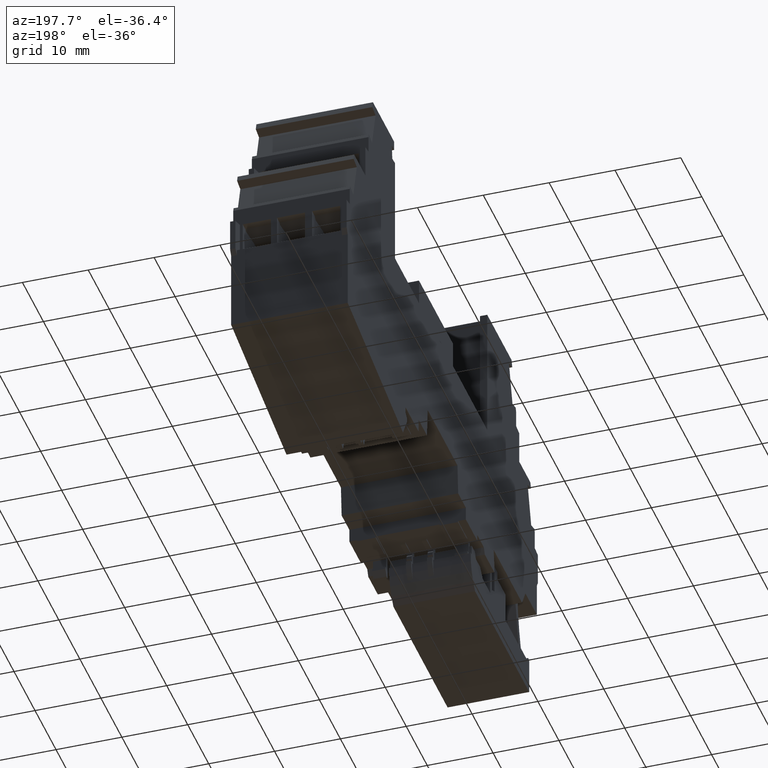
[diagram: clean part render]
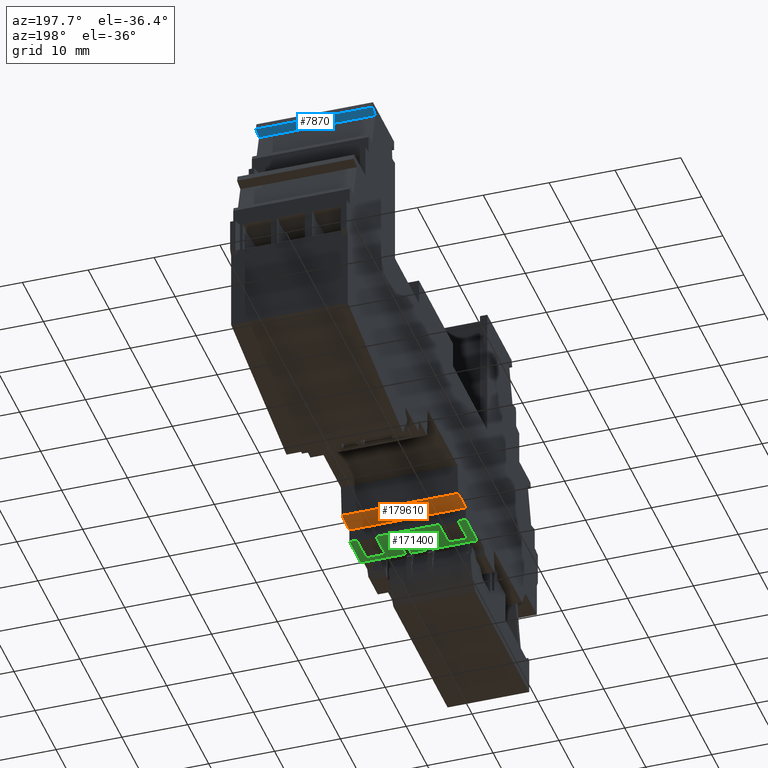
[diagram: same view with three faces highlighted in distinct colors, each labeled with its STEP entity id]
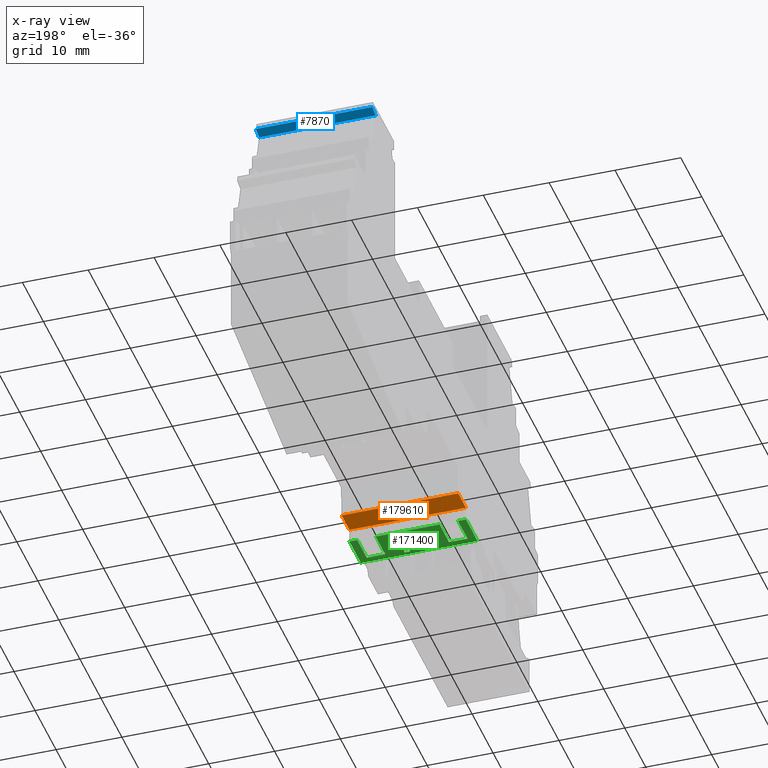
[diagram: x-ray of the same camera — body ghosted, the three highlighted faces saturated]
A machine part, auxiliary view with three faces highlighted in distinct colors.
The next image is the same camera in x-ray (body ghosted, the three faces saturated) — at least one of them is partly hidden behind the body in this view.
Their STEP definitions:

[orange] entity #179610 — the highlighted planar face has unit normal (0, 0, -1).
#3080=CARTESIAN_POINT('',(110.587251077606,30.0453465791783,
-0.938341445750716));
#3090=VERTEX_POINT('',#3080);
#3120=CARTESIAN_POINT('',(171.854165367466,30.0453465791783,
-0.93834144574264));
#3130=DIRECTION('',(1.,-3.00822995358002E-23,1.31820478495383E-13));
#3140=VECTOR('',#3130,1.);
#3150=LINE('',#3120,#3140);
#3160=CARTESIAN_POINT('',(106.903020241698,30.045346579171,
-0.938341445751202));
#3170=VERTEX_POINT('',#3160);
#3180=EDGE_CURVE('',#3170,#3090,#3150,.T.);
#11680=CARTESIAN_POINT('',(106.903020241696,30.0453465784002,
-18.6383414421948));
#11690=VERTEX_POINT('',#11680);
#11720=CARTESIAN_POINT('',(171.854165366688,30.0453465784002,
-18.6383414422033));
#11730=DIRECTION('',(1.,-4.1671480469559E-23,-1.31820482418933E-13));
#11740=VECTOR('',#11730,1.);
#11750=LINE('',#11720,#11740);
#11760=CARTESIAN_POINT('',(110.587251077604,30.0453465784002,
-18.6383414421953));
#11770=VERTEX_POINT('',#11760);
#11780=EDGE_CURVE('',#11690,#11770,#11750,.T.);
#178570=CARTESIAN_POINT('',(106.9030202417,30.045346579708,
11.2750000026827));
#178580=DIRECTION('',(-1.3182048241894E-13,-4.39608926050624E-11,-1.));
#178590=VECTOR('',#178580,1.);
#178600=LINE('',#178570,#178590);
#178610=EDGE_CURVE('',#3170,#11690,#178600,.T.);
#179450=CARTESIAN_POINT('',(110.587251077604,30.0453465784002,
-18.6383414421953));
#179460=DIRECTION('',(-3.58774154957188E-23,-1.,4.39608926050624E-11));
#179470=DIRECTION('',(1.,-4.16723615664853E-23,-1.3182048241894E-13));
#179480=AXIS2_PLACEMENT_3D('',#179450,#179460,#179470);
#179490=PLANE('',#179480);
#179500=ORIENTED_EDGE('',*,*,#178610,.T.);
#179510=ORIENTED_EDGE('',*,*,#3180,.F.);
#179520=CARTESIAN_POINT('',(110.587251078377,30.0453465797152,
11.2750000025207));
#179530=DIRECTION('',(-1.31820478495376E-13,4.39608926050624E-11,1.));
#179540=VECTOR('',#179530,1.);
#179550=LINE('',#179520,#179540);
#179560=EDGE_CURVE('',#11770,#3090,#179550,.T.);
#179570=ORIENTED_EDGE('',*,*,#179560,.T.);
#179580=ORIENTED_EDGE('',*,*,#11780,.T.);
#179590=EDGE_LOOP('',(#179580,#179570,#179510,#179500));
#179600=FACE_OUTER_BOUND('',#179590,.T.);
#179610=ADVANCED_FACE('',(#179600),#179490,.T.);

[blue] entity #7870 — the highlighted planar face has unit normal (0, -0.2639, 0.9646).
#760=CARTESIAN_POINT('',(151.446544502388,70.801929680881,
-0.938341447537027));
#770=VERTEX_POINT('',#760);
#800=CARTESIAN_POINT('',(85.4518755928881,52.747831258784,
-0.938341446734807));
#810=DIRECTION('',(0.964557418457813,0.26387304996532,
-1.19815583951361E-11));
#820=VECTOR('',#810,1.);
#830=LINE('',#800,#820);
#840=CARTESIAN_POINT('',(149.903252632856,70.3797328009367,
-0.938341447518669));
#850=VERTEX_POINT('',#840);
#860=EDGE_CURVE('',#850,#770,#830,.T.);
#7570=CARTESIAN_POINT('',(150.38553134208,70.5116693251411,
-18.6383414445199));
#7580=DIRECTION('',(-0.26387304996532,0.964557418457813,
-4.23332373392702E-11));
#7590=DIRECTION('',(-0.964557418457813,-0.26387304996532,
1.18543916574472E-11));
#7600=AXIS2_PLACEMENT_3D('',#7570,#7580,#7590);
#7610=PLANE('',#7600);
#7620=CARTESIAN_POINT('',(85.4518755936615,52.7478312582187,
-18.63834144319));
#7630=DIRECTION('',(-0.964557418457813,-0.26387304996532,
1.17272618113457E-11));
#7640=VECTOR('',#7630,1.);
#7650=LINE('',#7620,#7640);
#7660=CARTESIAN_POINT('',(151.446544503109,70.8019296803014,
-18.6383414439924));
#7670=VERTEX_POINT('',#7660);
#7680=CARTESIAN_POINT('',(149.903252632851,70.3797328001586,
-18.6383414439736));
#7690=VERTEX_POINT('',#7680);
#7700=EDGE_CURVE('',#7670,#7690,#7650,.T.);
#7710=ORIENTED_EDGE('',*,*,#7700,.F.);
#7720=CARTESIAN_POINT('',(149.903252632856,70.3797328009365,
-0.938341442099963));
#7730=DIRECTION('',(2.63640962876091E-13,4.39608926050624E-11,1.));
#7740=VECTOR('',#7730,1.);
#7750=LINE('',#7720,#7740);
#7760=EDGE_CURVE('',#7690,#850,#7750,.T.);
#7770=ORIENTED_EDGE('',*,*,#7760,.F.);
#7780=ORIENTED_EDGE('',*,*,#860,.F.);
#7790=CARTESIAN_POINT('',(151.446544502388,70.801929680881,
-0.938341442050914));
#7800=DIRECTION('',(4.07405027133147E-11,-3.27434282571627E-11,-1.));
#7810=VECTOR('',#7800,1.);
#7820=LINE('',#7790,#7810);
#7830=EDGE_CURVE('',#770,#7670,#7820,.T.);
#7840=ORIENTED_EDGE('',*,*,#7830,.F.);
#7850=EDGE_LOOP('',(#7840,#7780,#7770,#7710));
#7860=FACE_OUTER_BOUND('',#7850,.T.);
#7870=ADVANCED_FACE('',(#7860),#7610,.F.);

[green] entity #171400 — the highlighted planar face has unit normal (-0, 0, -1).
#3240=CARTESIAN_POINT('',(106.903020241698,27.9453465791647,
-0.938341445658885));
#3250=VERTEX_POINT('',#3240);
#3280=CARTESIAN_POINT('',(150.854165360675,27.9453465791733,
-0.938341445653091));
#3290=DIRECTION('',(1.,5.71583105879582E-24,1.31820478495376E-13));
#3300=VECTOR('',#3290,1.);
#3310=LINE('',#3280,#3300);
#3320=CARTESIAN_POINT('',(101.506785998505,27.9453465791647,
-0.938341445659598));
#3330=VERTEX_POINT('',#3320);
#3340=EDGE_CURVE('',#3330,#3250,#3310,.T.);
#11520=CARTESIAN_POINT('',(101.506785997727,27.9453465783939,
-18.6383414421018));
#11530=VERTEX_POINT('',#11520);
#11560=CARTESIAN_POINT('',(150.854165359897,27.9453465783939,
-18.6383414421083));
#11570=DIRECTION('',(1.,-5.55111569976488E-17,-1.3182048241894E-13));
#11580=VECTOR('',#11570,1.);
#11590=LINE('',#11560,#11580);
#11600=CARTESIAN_POINT('',(106.903020241704,27.9453465783939,
-18.6383414421025));
#11610=VERTEX_POINT('',#11600);
#11620=EDGE_CURVE('',#11530,#11610,#11590,.T.);
#148120=CARTESIAN_POINT('',(101.506785998505,27.9453465791733,
-0.938341440907463));
#148130=DIRECTION('',(-4.39611701608816E-11,-4.35524965984235E-11,-1.));
#148140=VECTOR('',#148130,1.);
#148150=LINE('',#148120,#148140);
#148160=EDGE_CURVE('',#3330,#11530,#148150,.T.);
#170000=CARTESIAN_POINT('',(97.5847947512468,27.9453465783939,
-18.6383414407351));
#170010=DIRECTION('',(-5.55111512553756E-17,-1.,4.35524965984235E-11));
#170020=DIRECTION('',(1.,-5.55130658740895E-17,-4.39611701608816E-11));
#170030=AXIS2_PLACEMENT_3D('',#170000,#170010,#170020);
#170040=PLANE('',#170030);
#170050=CARTESIAN_POINT('',(101.92605522133,27.9453465791647,
-0.938341440925894));
#170060=DIRECTION('',(2.78330691847095E-11,4.35524965984235E-11,1.));
#170070=VECTOR('',#170060,1.);
#170080=LINE('',#170050,#170070);
#170090=CARTESIAN_POINT('',(101.926055221028,27.9453465786922,
-11.7883414401347));
#170100=VERTEX_POINT('',#170090);
#170110=CARTESIAN_POINT('',(101.92605522105,27.945346578727,
-10.9883414401347));
#170120=VERTEX_POINT('',#170110);
#170130=EDGE_CURVE('',#170100,#170120,#170080,.T.);
#170140=ORIENTED_EDGE('',*,*,#170130,.T.);
#170150=CARTESIAN_POINT('',(150.854165360198,27.9453465786922,
-11.7883414414965));
#170160=DIRECTION('',(1.,-5.55123634561887E-17,-2.78330691847095E-11));
#170170=VECTOR('',#170160,1.);
#170180=LINE('',#170150,#170170);
#170190=CARTESIAN_POINT('',(104.364405433714,27.9453465786922,
-11.7883414402026));
#170200=VERTEX_POINT('',#170190);
#170210=EDGE_CURVE('',#170100,#170200,#170180,.T.);
#170220=ORIENTED_EDGE('',*,*,#170210,.F.);
#170230=CARTESIAN_POINT('',(104.364405433953,27.9453465791647,
-0.938341441033087));
#170240=DIRECTION('',(-2.42962560191756E-11,-4.35524965984235E-11,-1.));
#170250=VECTOR('',#170240,1.);
#170260=LINE('',#170230,#170250);
#170270=CARTESIAN_POINT('',(104.364405433736,27.945346578727,
-10.9883414402026));
#170280=VERTEX_POINT('',#170270);
#170290=EDGE_CURVE('',#170280,#170200,#170260,.T.);
#170300=ORIENTED_EDGE('',*,*,#170290,.T.);
#170310=CARTESIAN_POINT('',(150.854165360233,27.945346578727,
-10.9883414414965));
#170320=DIRECTION('',(1.,-5.55123634561887E-17,-2.78330691847095E-11));
#170330=VECTOR('',#170320,1.);
#170340=LINE('',#170310,#170330);
#170350=EDGE_CURVE('',#170120,#170280,#170340,.T.);
#170360=ORIENTED_EDGE('',*,*,#170350,.T.);
#170370=EDGE_LOOP('',(#170360,#170300,#170220,#170140));
#170380=FACE_BOUND('',#170370,.T.);
#170390=CARTESIAN_POINT('',(101.92605522133,27.9453465791647,
-0.938341440925894));
#170400=DIRECTION('',(-2.78330691847095E-11,-4.35524965984235E-11,-1.));
#170410=VECTOR('',#170400,1.);
#170420=LINE('',#170390,#170410);
#170430=CARTESIAN_POINT('',(101.926055221139,27.9453465788664,
-7.78834144370691));
#170440=VERTEX_POINT('',#170430);
#170450=CARTESIAN_POINT('',(101.926055221117,27.9453465788316,
-8.58834144370692));
#170460=VERTEX_POINT('',#170450);
#170470=EDGE_CURVE('',#170440,#170460,#170420,.T.);
#170480=ORIENTED_EDGE('',*,*,#170470,.F.);
#170490=CARTESIAN_POINT('',(150.854165360338,27.9453465788316,
-8.58834144149653));
#170500=DIRECTION('',(1.,-5.55123634561887E-17,-2.78330691847095E-11));
#170510=VECTOR('',#170500,1.);
#170520=LINE('',#170490,#170510);
#170530=CARTESIAN_POINT('',(104.364405433794,27.9453465788469,
-8.58834144377478));
#170540=VERTEX_POINT('',#170530);
#170550=EDGE_CURVE('',#170460,#170540,#170520,.T.);
#170560=ORIENTED_EDGE('',*,*,#170550,.F.);
#170570=CARTESIAN_POINT('',(104.364405433953,27.9453465791647,
-0.938341441033087));
#170580=DIRECTION('',(2.42962560191756E-11,4.35524965984235E-11,1.));
#170590=VECTOR('',#170580,1.);
#170600=LINE('',#170570,#170590);
#170610=CARTESIAN_POINT('',(104.364405433787,27.9453465788664,
-7.78834144377478));
#170620=VERTEX_POINT('',#170610);
#170630=EDGE_CURVE('',#170540,#170620,#170600,.T.);
#170640=ORIENTED_EDGE('',*,*,#170630,.F.);
#170650=CARTESIAN_POINT('',(150.854165360374,27.9453465788664,
-7.78834144506873));
#170660=DIRECTION('',(-1.,5.55123634561887E-17,2.78330691847095E-11));
#170670=VECTOR('',#170660,1.);
#170680=LINE('',#170650,#170670);
#170690=EDGE_CURVE('',#170620,#170440,#170680,.T.);
#170700=ORIENTED_EDGE('',*,*,#170690,.F.);
#170710=EDGE_LOOP('',(#170700,#170640,#170560,#170480));
#170720=FACE_BOUND('',#170710,.T.);
#170730=ORIENTED_EDGE('',*,*,#11620,.T.);
#170740=ORIENTED_EDGE('',*,*,#148160,.T.);
#170750=ORIENTED_EDGE('',*,*,#3340,.F.);
#170760=CARTESIAN_POINT('',(106.903020241708,27.9453465796967,
11.2750000026818));
#170770=DIRECTION('',(-1.3182048241894E-13,-4.35524965984235E-11,-1.));
#170780=VECTOR('',#170770,1.);
#170790=LINE('',#170760,#170780);
#170800=CARTESIAN_POINT('',(106.903020241706,27.9453465791125,
-2.1383414429438));
#170810=VERTEX_POINT('',#170800);
#170820=EDGE_CURVE('',#3250,#170810,#170790,.T.);
#170830=ORIENTED_EDGE('',*,*,#170820,.F.);
#170840=CARTESIAN_POINT('',(150.854165360622,27.9453465791125,
-2.13834144283554));
#170850=DIRECTION('',(1.,-5.55110439873983E-17,2.46298485186341E-12));
#170860=VECTOR('',#170850,1.);
#170870=LINE('',#170840,#170860);
#170880=CARTESIAN_POINT('',(102.376935481768,27.9453465791125,
-2.13834144295494));
#170890=VERTEX_POINT('',#170880);
#170900=EDGE_CURVE('',#170890,#170810,#170870,.T.);
#170910=ORIENTED_EDGE('',*,*,#170900,.T.);
#170920=CARTESIAN_POINT('',(102.376935481952,27.9453465791647,
-0.938341440945715));
#170930=DIRECTION('',(8.10424991328198E-12,4.35524965984235E-11,1.));
#170940=VECTOR('',#170930,1.);
#170950=LINE('',#170920,#170940);
#170960=CARTESIAN_POINT('',(102.376935481775,27.9453465789905,
-4.93834144295495));
#170970=VERTEX_POINT('',#170960);
#170980=EDGE_CURVE('',#170970,#170890,#170950,.T.);
#170990=ORIENTED_EDGE('',*,*,#170980,.T.);
#171000=CARTESIAN_POINT('',(150.854165360499,27.9453465789905,
-4.93834144283555));
#171010=DIRECTION('',(1.,-5.55110439873983E-17,2.46298485186341E-12));
#171020=VECTOR('',#171010,1.);
#171030=LINE('',#171000,#171020);
#171040=CARTESIAN_POINT('',(106.903020241705,27.9453465789905,
-4.9383414429438));
#171050=VERTEX_POINT('',#171040);
#171060=EDGE_CURVE('',#170970,#171050,#171030,.T.);
#171070=ORIENTED_EDGE('',*,*,#171060,.F.);
#171080=CARTESIAN_POINT('',(106.903020241704,27.9453465785681,
-14.6383414429441));
#171090=VERTEX_POINT('',#171080);
#171100=EDGE_CURVE('',#171050,#171090,#170790,.T.);
#171110=ORIENTED_EDGE('',*,*,#171100,.F.);
#171120=CARTESIAN_POINT('',(150.854165360072,27.9453465785681,
-14.6383414428359));
#171130=DIRECTION('',(1.,-5.55110439873983E-17,2.46298485186341E-12));
#171140=VECTOR('',#171130,1.);
#171150=LINE('',#171120,#171140);
#171160=CARTESIAN_POINT('',(102.376935481799,27.9453465785681,
-14.6383414429553));
#171170=VERTEX_POINT('',#171160);
#171180=EDGE_CURVE('',#171170,#171090,#171150,.T.);
#171190=ORIENTED_EDGE('',*,*,#171180,.T.);
#171200=CARTESIAN_POINT('',(102.376935481952,27.9453465791647,
-0.938341440945715));
#171210=DIRECTION('',(8.10424991328198E-12,4.35524965984235E-11,1.));
#171220=VECTOR('',#171210,1.);
#171230=LINE('',#171200,#171220);
#171240=CARTESIAN_POINT('',(102.376935481806,27.9453465784461,
-17.4383414429553));
#171250=VERTEX_POINT('',#171240);
#171260=EDGE_CURVE('',#171250,#171170,#171230,.T.);
#171270=ORIENTED_EDGE('',*,*,#171260,.T.);
#171280=CARTESIAN_POINT('',(150.854165359949,27.9453465784461,
-17.4383414428359));
#171290=DIRECTION('',(1.,-5.55110439873983E-17,2.46298485186341E-12));
#171300=VECTOR('',#171290,1.);
#171310=LINE('',#171280,#171300);
#171320=CARTESIAN_POINT('',(106.903020241704,27.9453465784461,
-17.4383414429441));
#171330=VERTEX_POINT('',#171320);
#171340=EDGE_CURVE('',#171250,#171330,#171310,.T.);
#171350=ORIENTED_EDGE('',*,*,#171340,.F.);
#171360=EDGE_CURVE('',#171330,#11610,#170790,.T.);
#171370=ORIENTED_EDGE('',*,*,#171360,.F.);
#171380=EDGE_LOOP('',(#171370,#171350,#171270,#171190,#171110,#171070,
#170990,#170910,#170830,#170750,#170740,#170730));
#171390=FACE_OUTER_BOUND('',#171380,.T.);
#171400=ADVANCED_FACE('',(#170380,#170720,#171390),#170040,.T.);